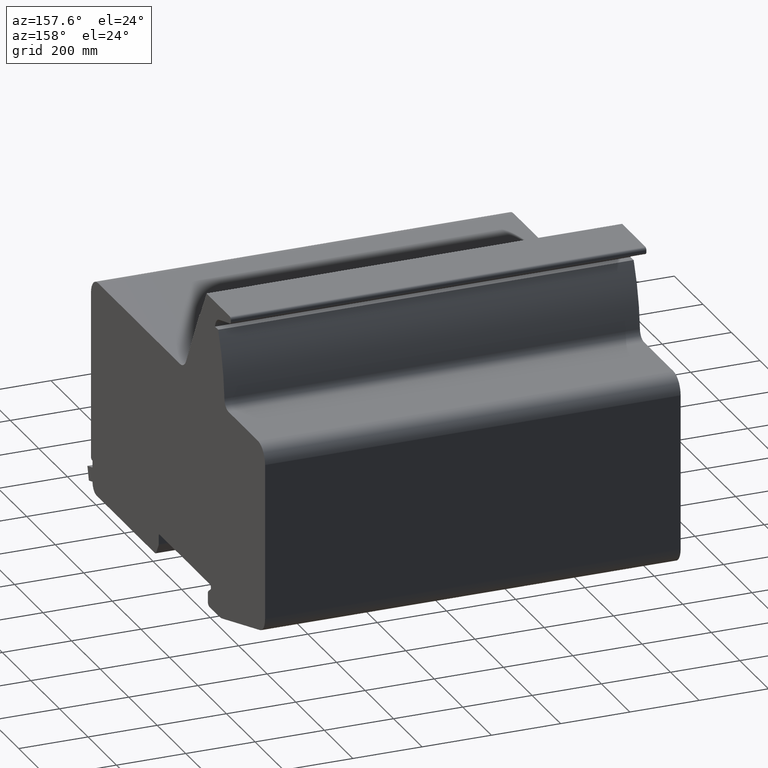
[diagram: clean part render]
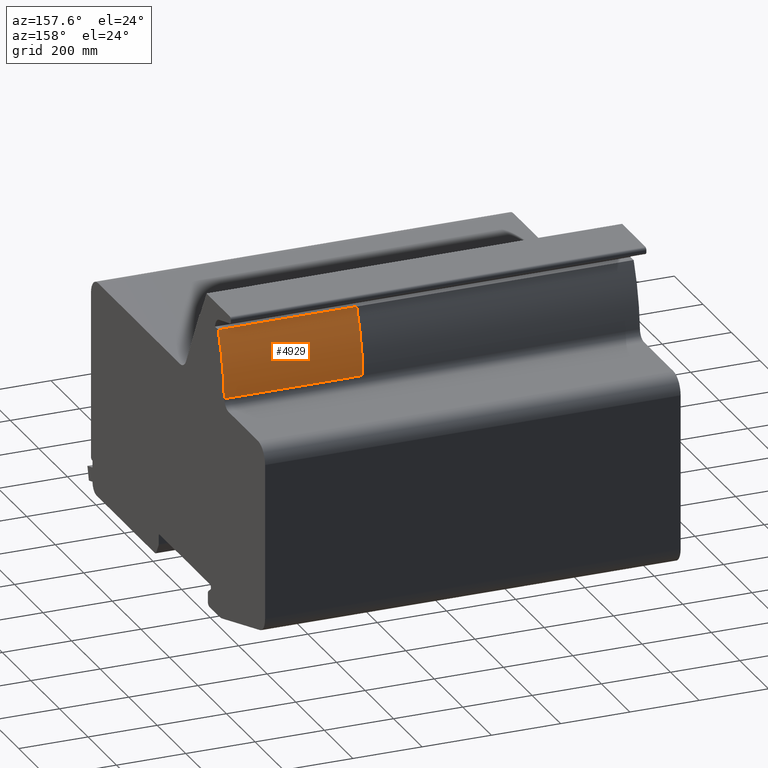
[diagram: same view with one face highlighted and labeled with its STEP entity id]
A machine part, auxiliary view. The second image highlights one B-rep face of the part: STEP entity #4929.
In plain terms, the highlighted cylindrical surface (partial cylindrical patch) has radius 518.41 mm, axis along (1, 0, 0).
Its self-contained STEP definition (entity closure, byte-faithful):
#4871=CARTESIAN_POINT('',(1200.0,56.099999999983936,767.4999999999967));
#4872=VERTEX_POINT('',#4871);
#4879=CARTESIAN_POINT('',(800.0,56.099999999983936,767.4999999999967));
#4880=VERTEX_POINT('',#4879);
#4881=CARTESIAN_POINT('',(800.0,56.099999999983936,767.4999999999967));
#4882=DIRECTION('',(1.0,0.0,0.0));
#4883=VECTOR('',#4882,400.0);
#4884=LINE('',#4881,#4883);
#4885=EDGE_CURVE('',#4880,#4872,#4884,.T.);
#4897=CARTESIAN_POINT('',(800.0,-417.87144228321324,557.49999999999727));
#4898=DIRECTION('',(1.0,0.0,0.0));
#4899=DIRECTION('',(0.0,0.972707546673246,0.232034541921919));
#4900=AXIS2_PLACEMENT_3D('',#4897,#4898,#4899);
#4901=CYLINDRICAL_SURFACE('',#4900,518.41000000001327);
#4902=CARTESIAN_POINT('',(1200.0,99.857462948040379,584.06517999301559));
#4903=VERTEX_POINT('',#4902);
#4904=CARTESIAN_POINT('',(1200.0,-417.87144228321324,557.49999999999727));
#4905=DIRECTION('',(-1.0,0.0,0.0));
#4906=DIRECTION('',(0.0,0.972707546673246,0.232034541921919));
#4907=AXIS2_PLACEMENT_3D('',#4904,#4905,#4906);
#4908=CIRCLE('',#4907,518.41000000001327);
#4909=EDGE_CURVE('',#4872,#4903,#4908,.T.);
#4910=ORIENTED_EDGE('',*,*,#4909,.T.);
#4911=CARTESIAN_POINT('',(800.0,99.857462948040379,584.06517999301559));
#4912=VERTEX_POINT('',#4911);
#4913=CARTESIAN_POINT('',(800.0,99.857462948040379,584.06517999301559));
#4914=DIRECTION('',(1.0,0.0,0.0));
#4915=VECTOR('',#4914,400.0);
#4916=LINE('',#4913,#4915);
#4917=EDGE_CURVE('',#4912,#4903,#4916,.T.);
#4918=ORIENTED_EDGE('',*,*,#4917,.F.);
#4919=CARTESIAN_POINT('',(800.0,-417.87144228321324,557.49999999999727));
#4920=DIRECTION('',(1.0,0.0,0.0));
#4921=DIRECTION('',(0.0,0.972707546673246,0.232034541921919));
#4922=AXIS2_PLACEMENT_3D('',#4919,#4920,#4921);
#4923=CIRCLE('',#4922,518.41000000001327);
#4924=EDGE_CURVE('',#4912,#4880,#4923,.T.);
#4925=ORIENTED_EDGE('',*,*,#4924,.T.);
#4926=ORIENTED_EDGE('',*,*,#4885,.T.);
#4927=EDGE_LOOP('',(#4910,#4918,#4925,#4926));
#4928=FACE_OUTER_BOUND('',#4927,.T.);
#4929=ADVANCED_FACE('',(#4928),#4901,.T.);